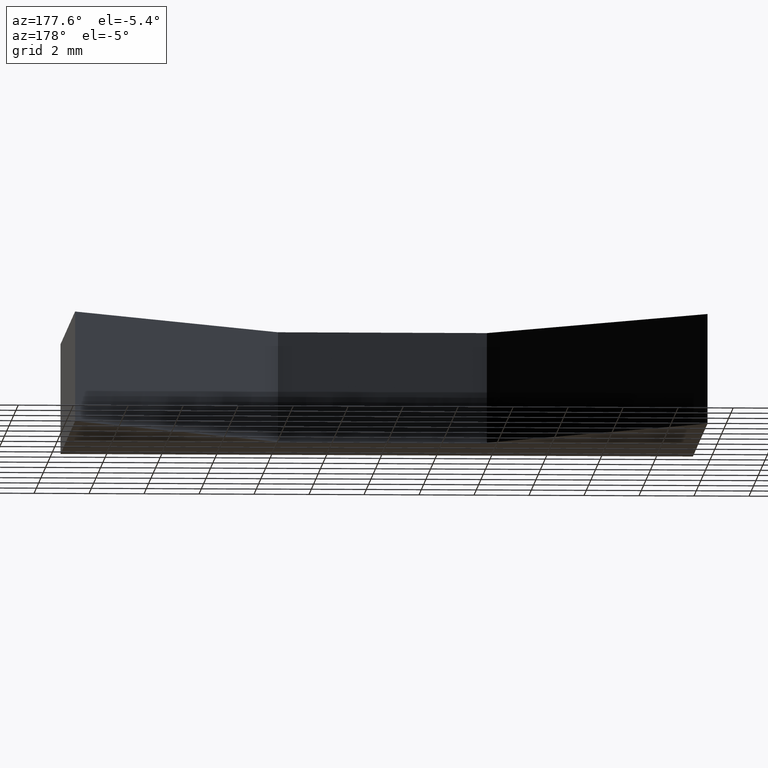
[diagram: clean part render]
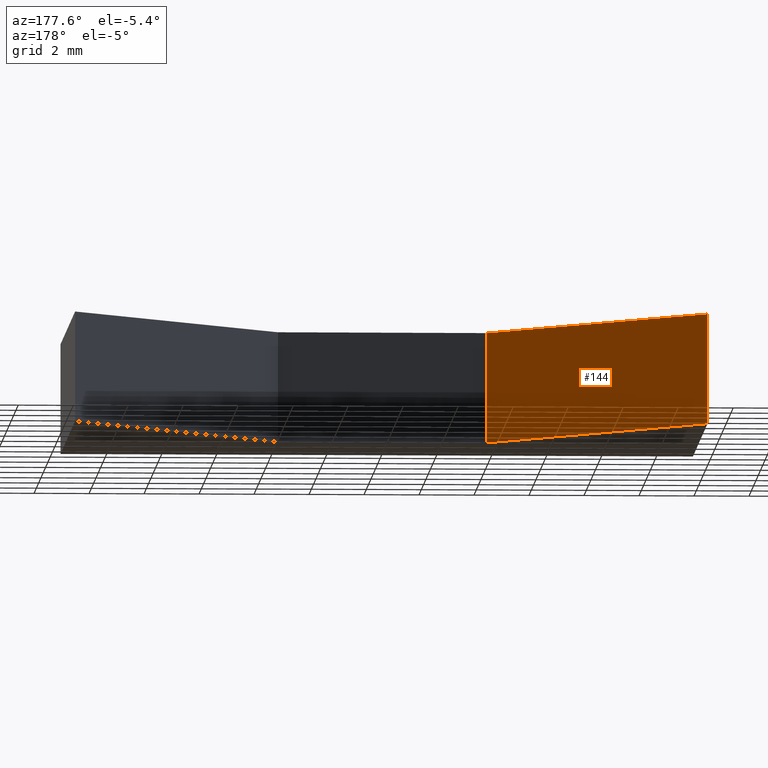
[diagram: same view with one face highlighted and labeled with its STEP entity id]
A machine part, auxiliary view. The second image highlights one B-rep face of the part: STEP entity #144.
In plain terms, the highlighted planar face has unit normal (0.7071, 0.7071, 0).
Its self-contained STEP definition (entity closure, byte-faithful):
#18=FACE_OUTER_BOUND('',#26,.T.);
#26=EDGE_LOOP('',(#108,#109,#110,#111));
#35=LINE('',#227,#53);
#39=LINE('',#235,#57);
#41=LINE('',#239,#59);
#42=LINE('',#240,#60);
#53=VECTOR('',#188,10.);
#57=VECTOR('',#194,10.);
#59=VECTOR('',#198,10.);
#60=VECTOR('',#199,10.);
#71=VERTEX_POINT('',#224);
#72=VERTEX_POINT('',#226);
#75=VERTEX_POINT('',#233);
#76=VERTEX_POINT('',#238);
#83=EDGE_CURVE('',#72,#71,#35,.T.);
#87=EDGE_CURVE('',#71,#75,#39,.T.);
#89=EDGE_CURVE('',#75,#76,#41,.T.);
#90=EDGE_CURVE('',#72,#76,#42,.T.);
#108=ORIENTED_EDGE('',*,*,#89,.T.);
#109=ORIENTED_EDGE('',*,*,#90,.F.);
#110=ORIENTED_EDGE('',*,*,#83,.T.);
#111=ORIENTED_EDGE('',*,*,#87,.T.);
#136=PLANE('',#175);
#144=ADVANCED_FACE('',(#18),#136,.T.);
#175=AXIS2_PLACEMENT_3D('',#237,#196,#197);
#188=DIRECTION('',(-0.707106781186548,0.707106781186547,0.));
#194=DIRECTION('',(0.,0.,1.));
#196=DIRECTION('center_axis',(0.707106781186547,0.707106781186548,0.));
#197=DIRECTION('ref_axis',(0.,0.,-1.));
#198=DIRECTION('',(0.707106781186548,-0.707106781186547,0.));
#199=DIRECTION('',(0.,0.,1.));
#224=CARTESIAN_POINT('',(-11.5,7.7,-2.));
#226=CARTESIAN_POINT('',(-3.8,-1.11022302462516E-15,-2.));
#227=CARTESIAN_POINT('',(-3.8,-1.11022302462516E-15,-2.));
#233=CARTESIAN_POINT('',(-11.5,7.7,2.));
#235=CARTESIAN_POINT('',(-11.5,7.7,0.));
#237=CARTESIAN_POINT('Origin',(-11.5,7.7,0.));
#238=CARTESIAN_POINT('',(-3.8,-1.11022302462516E-15,2.));
#239=CARTESIAN_POINT('',(-3.8,-1.11022302462516E-15,2.));
#240=CARTESIAN_POINT('',(-3.8,-1.11022302462516E-15,0.));